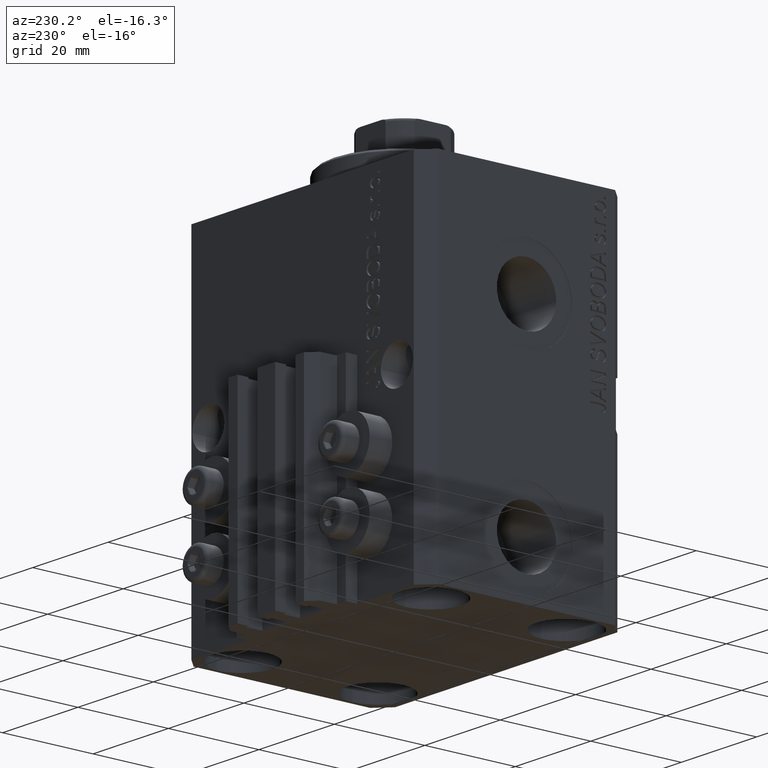
[diagram: clean part render]
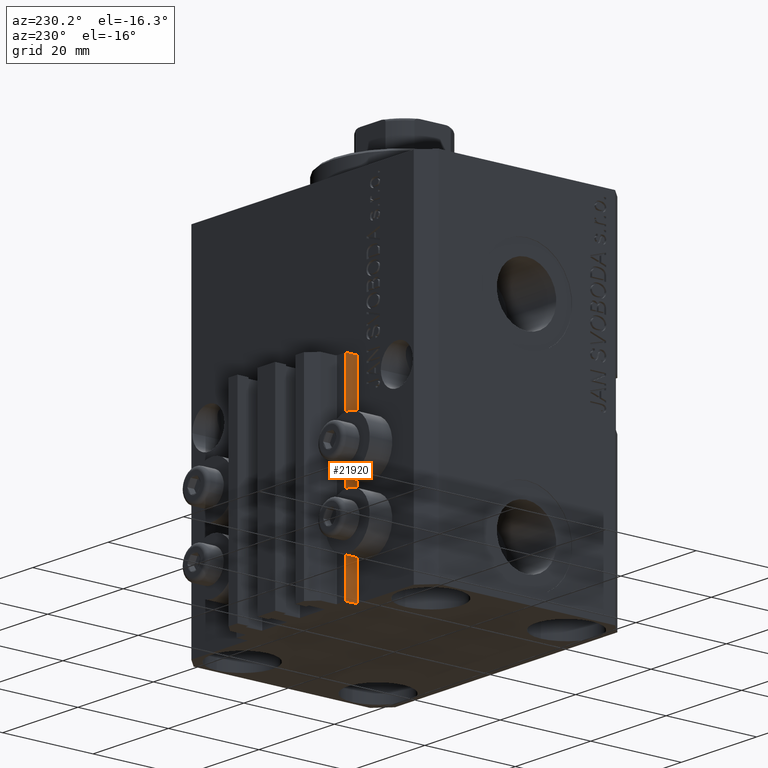
[diagram: same view with one face highlighted and labeled with its STEP entity id]
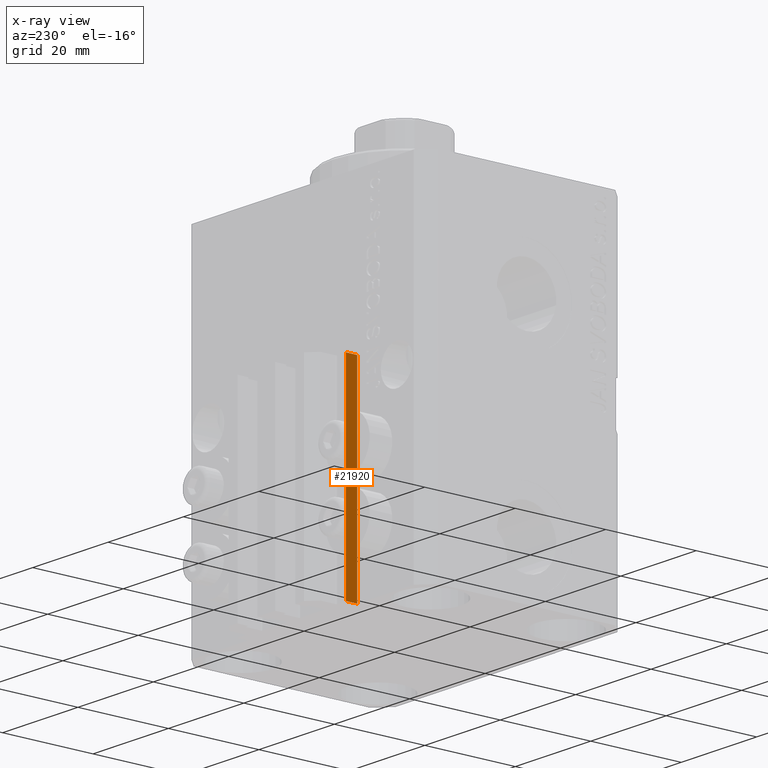
[diagram: x-ray of the same camera — body ghosted, the highlighted face saturated]
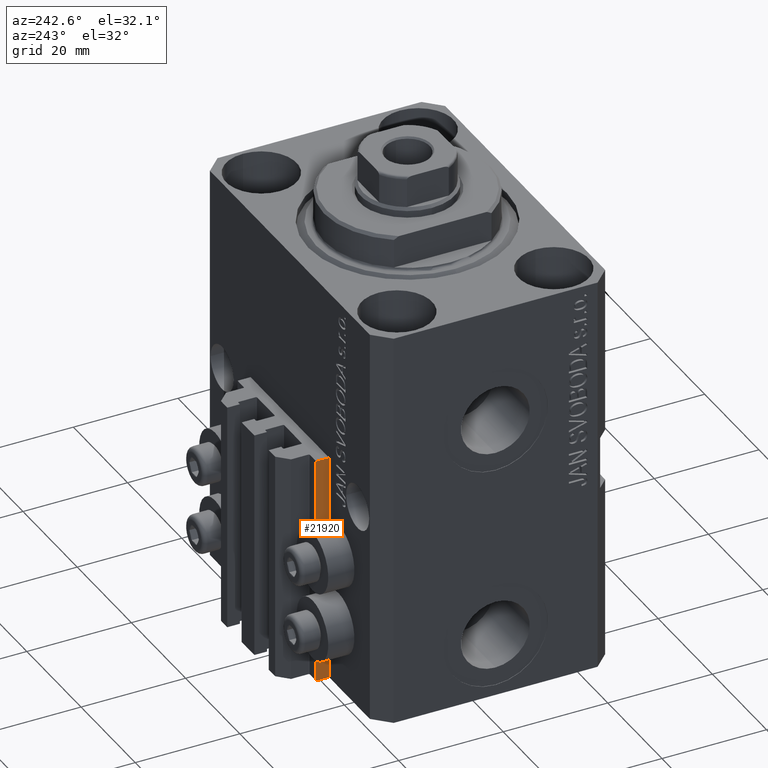
[diagram: same view with one face highlighted and labeled with its STEP entity id]
A machine part, auxiliary view. The second image highlights one B-rep face of the part: STEP entity #21920.
The next image is the same camera in x-ray: the body ghosted, the highlighted face saturated — about 0% of this face is hidden behind the body in this view.
A second angle (auxiliary view) of the same face is appended — the face is thin or edge-on in the first view.
In plain terms, the highlighted planar face has unit normal (-1, 0, 0).
Its self-contained STEP definition (entity closure, byte-faithful):
#3260 = CARTESIAN_POINT ( 'NONE',  ( -14.50000000000000000, 24.99999999999949196, -33.00000000000000000 ) ) ;
#3431 = DIRECTION ( 'NONE',  ( -1.000000000000000000, 0.000000000000000000, 0.000000000000000000 ) ) ;
#4912 = VERTEX_POINT ( 'NONE', #39110 ) ;
#4954 = EDGE_CURVE ( 'NONE', #28444, #30840, #34761, .T. ) ;
#5898 = DIRECTION ( 'NONE',  ( 0.000000000000000000, 0.000000000000000000, 1.000000000000000000 ) ) ;
#6044 = EDGE_CURVE ( 'NONE', #10816, #28444, #45723, .T. ) ;
#8908 = ORIENTED_EDGE ( 'NONE', *, *, #4954, .F. ) ;
#9676 = CARTESIAN_POINT ( 'NONE',  ( -14.50000000000000000, 24.99999999999949196, -33.00000000000000000 ) ) ;
#9986 = CARTESIAN_POINT ( 'NONE',  ( -14.50000000000000000, 22.49999999999949907, -77.00000000000000000 ) ) ;
#10718 = EDGE_CURVE ( 'NONE', #4912, #30840, #24235, .T. ) ;
#10777 = LINE ( 'NONE', #35651, #15352 ) ;
#10816 = VERTEX_POINT ( 'NONE', #36744 ) ;
#13576 = VECTOR ( 'NONE', #24945, 1000.000000000000000 ) ;
#13925 = DIRECTION ( 'NONE',  ( 0.000000000000000000, -1.000000000000000000, 0.000000000000000000 ) ) ;
#15352 = VECTOR ( 'NONE', #13925, 1000.000000000000000 ) ;
#16456 = CARTESIAN_POINT ( 'NONE',  ( -14.50000000000000000, 22.49999999999949907, -33.00000000000000000 ) ) ;
#18141 = DIRECTION ( 'NONE',  ( 0.000000000000000000, 0.000000000000000000, 1.000000000000000000 ) ) ;
#21036 = EDGE_CURVE ( 'NONE', #10816, #4912, #10777, .T. ) ;
#21920 = ADVANCED_FACE ( 'NONE', ( #41947 ), #40345, .T. ) ;
#23675 = DIRECTION ( 'NONE',  ( 0.000000000000000000, -1.000000000000000000, 0.000000000000000000 ) ) ;
#24235 = LINE ( 'NONE', #9986, #13576 ) ;
#24276 = ORIENTED_EDGE ( 'NONE', *, *, #21036, .T. ) ;
#24944 = VECTOR ( 'NONE', #23675, 1000.000000000000000 ) ;
#24945 = DIRECTION ( 'NONE',  ( 0.000000000000000000, 0.000000000000000000, 1.000000000000000000 ) ) ;
#28444 = VERTEX_POINT ( 'NONE', #3260 ) ;
#28848 = ORIENTED_EDGE ( 'NONE', *, *, #6044, .F. ) ;
#30840 = VERTEX_POINT ( 'NONE', #16456 ) ;
#33262 = ORIENTED_EDGE ( 'NONE', *, *, #10718, .T. ) ;
#34761 = LINE ( 'NONE', #9676, #24944 ) ;
#35651 = CARTESIAN_POINT ( 'NONE',  ( -14.50000000000000000, 24.99999999999949196, -77.00000000000000000 ) ) ;
#36483 = CARTESIAN_POINT ( 'NONE',  ( -14.50000000000000000, 24.99999999999949196, -77.00000000000000000 ) ) ;
#36744 = CARTESIAN_POINT ( 'NONE',  ( -14.50000000000000000, 24.99999999999949196, -77.00000000000000000 ) ) ;
#38961 = CARTESIAN_POINT ( 'NONE',  ( -14.50000000000000000, 24.99999999999949196, -77.00000000000000000 ) ) ;
#39110 = CARTESIAN_POINT ( 'NONE',  ( -14.50000000000000000, 22.49999999999949907, -77.00000000000000000 ) ) ;
#40345 = PLANE ( 'NONE',  #47732 ) ;
#40398 = VECTOR ( 'NONE', #5898, 1000.000000000000000 ) ;
#41947 = FACE_OUTER_BOUND ( 'NONE', #42511, .T. ) ;
#42511 = EDGE_LOOP ( 'NONE', ( #8908, #28848, #24276, #33262 ) ) ;
#45723 = LINE ( 'NONE', #38961, #40398 ) ;
#47732 = AXIS2_PLACEMENT_3D ( 'NONE', #36483, #3431, #18141 ) ;